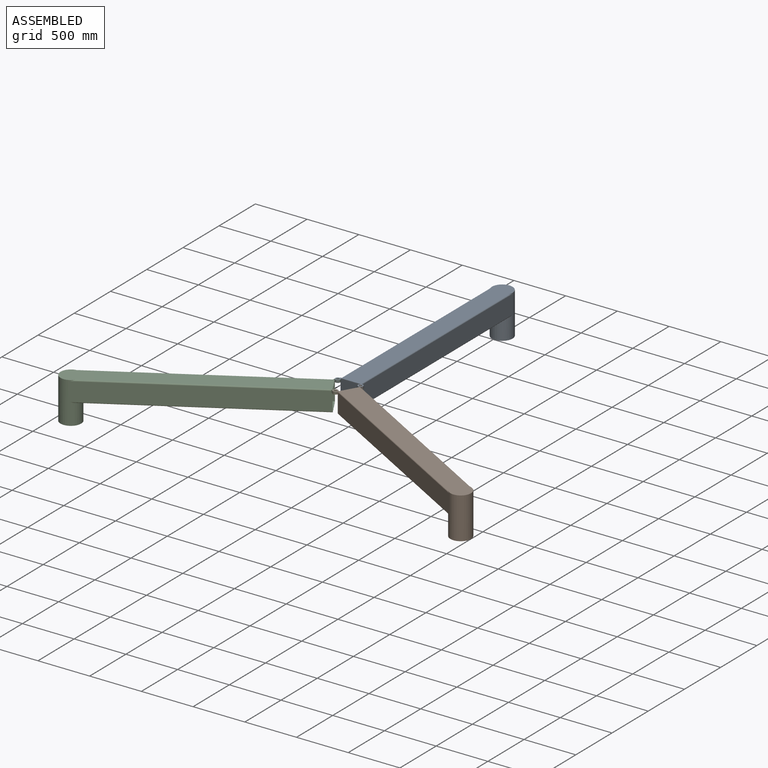
[diagram: assembled view]
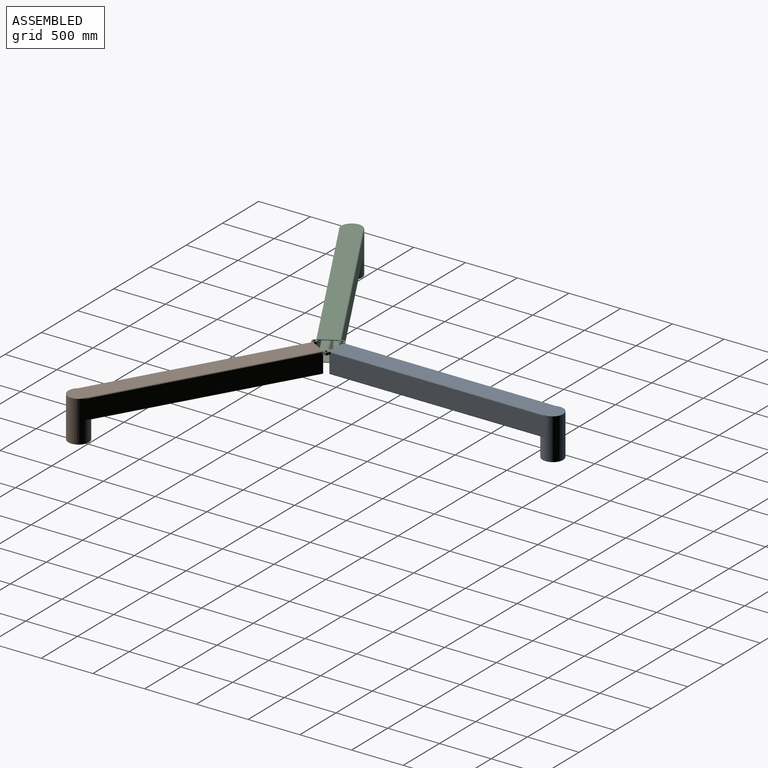
[diagram: assembled view, second angle]
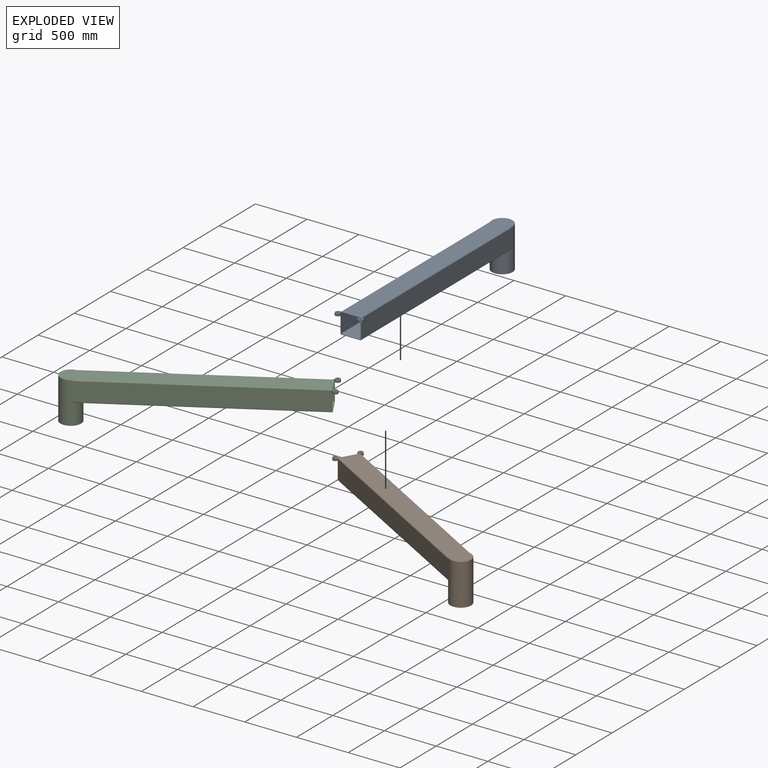
[diagram: exploded view]
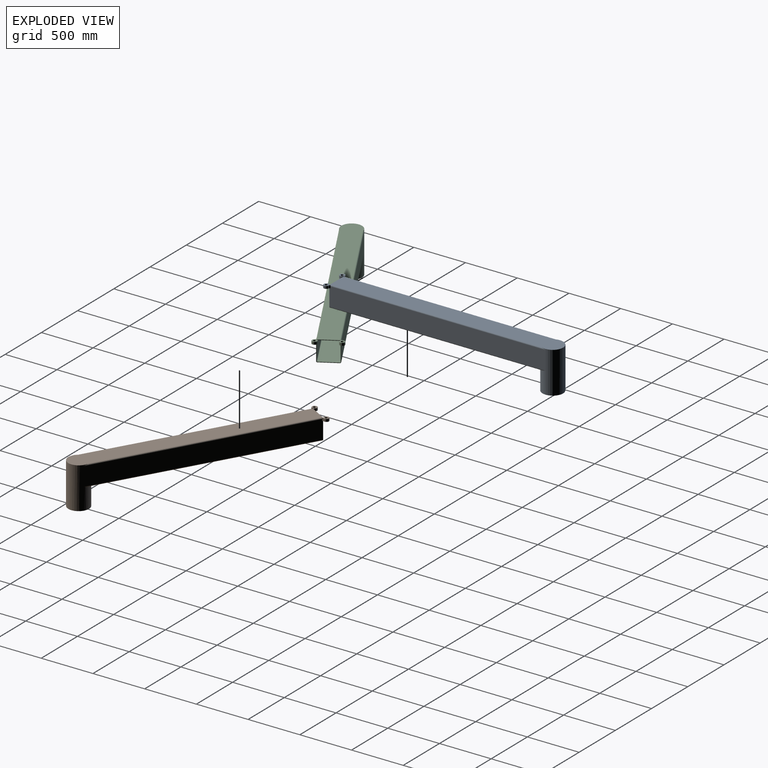
[diagram: exploded view, second angle]
ASSEMBLY  parts=3 mates=5
PART A: 33 faces, bbox 270x2237.9x400 mm
  f0: plane 10.05x10mm, normal (1,0,0), area 100.5mm2, adj f1,f2,f4,f24
  f1: cylinder r=25mm len=50mm, axis (0,0,-1), area 3721.3mm2, adj f0,f2,f4,f5,f25
  f2: plane 25x8.05mm, normal (-0.71,0.7,0), area 282.8mm2, adj f0,f1,f4,f5,f11
  f3: cylinder r=13mm len=26mm, axis (0,0,-1), area 2042mm2, adj f4,f5
  f4: plane 57.97x50mm, normal (0,0,1), area 1470.7mm2, adj f0,f1,f2,f3
  f5: plane 57.97x50mm, normal (0,0,-1), area 1470.7mm2, adj f1,f2,f3,f11
  f6: plane 2090x180mm, normal (1,0,0), area 376049.2mm2, adj f7,f14,f15,f25,f29,f32
  f7: cylinder r=100mm len=400mm, axis (0,0,1), area 189021.1mm2, adj f6,f8,f9,f10,f11,f12,f13,f14
  f8: cylinder r=100mm len=43.59mm, axis (0,0,1), area 175.2mm2, adj f7,f10,f15
  f9: plane 200x200mm, normal (0,0,-1), area 31415.9mm2, adj f7
  f10: plane 2190x200mm, normal (0,0,1), area 392495.2mm2, adj f7,f8,f15,f24,f25
  f11: plane 2090x180mm, normal (-1,0,0), area 376049.2mm2, adj f2,f5,f7,f12,f24,f25
  f12: cylinder r=10mm len=2090mm, axis (0,1,0), area 32464.1mm2, adj f7,f11,f13,f25
  f13: plane 2046.41x180mm, normal (0,0,-1), area 361079.3mm2, adj f7,f12,f14,f25
  f14: cylinder r=10mm len=2090mm, axis (0,1,0), area 32464.1mm2, adj f6,f7,f13,f25
  f15: cylinder r=10mm len=2090mm, axis (0,1,0), area 32464.1mm2, adj f6,f8,f10,f25,f27
  f16: cylinder r=5mm len=2058.78mm, axis (0,1,0), area 16131.7mm2, adj f17,f23,f25,f26
  f17: plane 2046.41x180mm, normal (0,0,-1), area 361079.3mm2, adj f16,f18,f25,f26
  f18: cylinder r=5mm len=2058.78mm, axis (0,1,0), area 16131.7mm2, adj f17,f19,f25,f26
  f19: plane 2058.78x180mm, normal (-1,0,0), area 370579.5mm2, adj f18,f20,f25,f26
  f20: cylinder r=5mm len=2058.78mm, axis (0,1,0), area 16131.7mm2, adj f19,f21,f25,f26
  f21: plane 2046.41x180mm, normal (0,0,1), area 361079.3mm2, adj f20,f22,f25,f26
  f22: cylinder r=5mm len=2058.78mm, axis (0,1,0), area 16131.7mm2, adj f21,f23,f25,f26
  f23: plane 2058.78x180mm, normal (1,0,0), area 370579.5mm2, adj f16,f22,f25,f26
  f24: cylinder r=10mm len=2090mm, axis (0,1,0), area 32464.1mm2, adj f0,f7,f10,f11,f25
  f25: plane 200x200mm, normal (0,-1,0), area 3835.6mm2, adj f1,f6,f10,f11,f12,f13,f14,f15
  f26: cylinder r=100mm len=190mm, axis (0,0,1), area 47560.2mm2, adj f16,f17,f18,f19,f20,f21,f22,f23
  f27: plane 10.05x10mm, normal (-1,0,0), area 100.5mm2, adj f15,f28,f29,f31
  f28: cylinder r=25mm len=50mm, axis (0,0,-1), area 3721.3mm2, adj f25,f27,f29,f31,f32
  f29: plane 25x8.05mm, normal (0.71,0.7,0), area 282.8mm2, adj f6,f27,f28,f31,f32
  f30: cylinder r=13mm len=26mm, axis (0,0,-1), area 2042mm2, adj f31,f32
  f31: plane 57.97x50mm, normal (0,0,1), area 1470.7mm2, adj f27,f28,f29,f30
  f32: plane 57.97x50mm, normal (0,0,-1), area 1470.7mm2, adj f6,f28,f29,f30
PART B: same geometry as A
PART C: same geometry as A
PLACE A t=(-575.94,662.49,-373.84)mm
PLACE B rot(axis=(0,0,-1),120deg) t=(1458.9,-2515.54,-373.84)mm
PLACE C rot(axis=(0,0,1),120deg) t=(-2310.78,-2688.75,-373.84)mm
MATE cylindrical A.f28 <-> B.f1  axis (0,0,-1) through (-365.94,-1450.43,-173.84)mm
MATE cylindrical B.f28 <-> C.f1  axis (0,0,1) through (-475.94,-1640.95,-173.84)mm
MATE cylindrical C.f28 <-> A.f1  axis (0,0,1) through (-585.94,-1450.43,-173.84)mm
MATE planar C.f10 <-> B.f10  axis (0,0,1) through (-1494.8,-2102.18,-173.84)mm
MATE planar A.f10 <-> C.f10  axis (0,0,1) through (-475.94,-337.46,-173.84)mm
